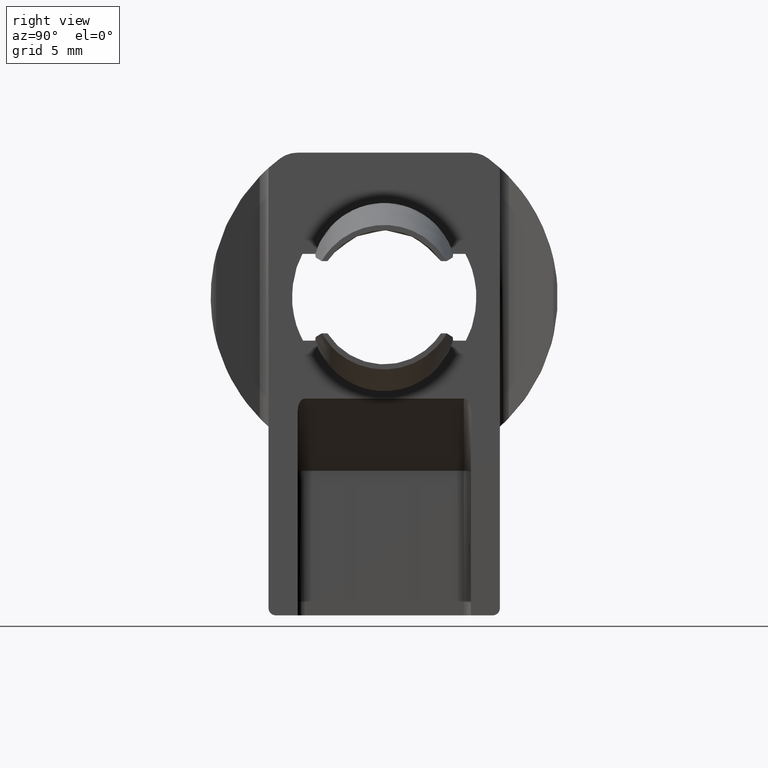
[diagram: clean part render]
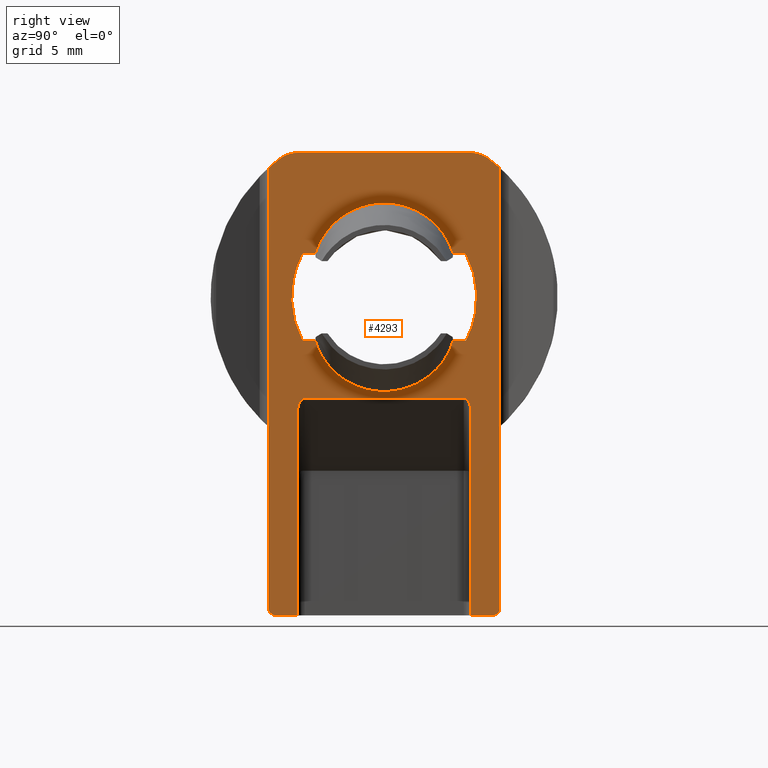
[diagram: same view with one face highlighted and labeled with its STEP entity id]
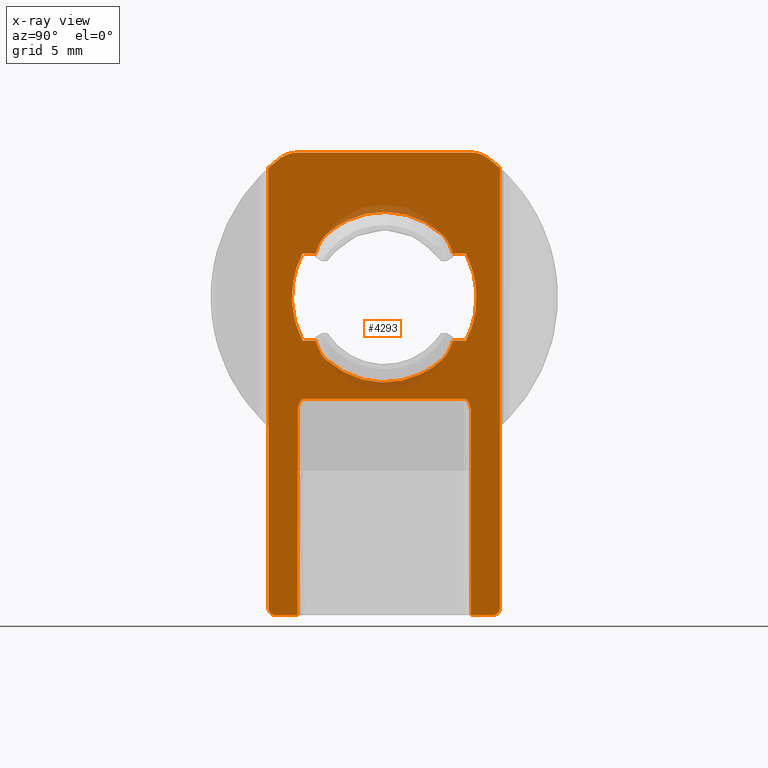
[diagram: x-ray of the same camera — body ghosted, the highlighted face saturated]
A machine part, right view. The second image highlights one B-rep face of the part: STEP entity #4293.
The next image is the same camera in x-ray: the body ghosted, the highlighted face saturated — about 3% of this face is hidden behind the body in this view.
In plain terms, the highlighted face is a freeform B-spline surface patch.
Its self-contained STEP definition (entity closure, byte-faithful):
#51=CARTESIAN_POINT('',(1.771347E-015,-4.765762840236580,2.999886770160321));
#52=VERTEX_POINT('',#51);
#127=CARTESIAN_POINT('',(1.776357E-015,4.765907703788380,2.999886729911405));
#128=VERTEX_POINT('',#127);
#157=CARTESIAN_POINT('',(3.570478E-015,4.765707419094451,-3.0));
#158=VERTEX_POINT('',#157);
#235=CARTESIAN_POINT('',(3.570478E-015,-4.765864318807211,-3.0));
#236=VERTEX_POINT('',#235);
#787=CARTESIAN_POINT('',(0.0,4.554444091420580,-3.552891456755315));
#788=VERTEX_POINT('',#787);
#789=CARTESIAN_POINT('',(0.0,3.946400949787030,-4.385976283226240));
#790=VERTEX_POINT('',#789);
#791=CARTESIAN_POINT('',(0.0,4.554444091420580,-3.552891456755315));
#792=CARTESIAN_POINT('',(0.0,4.461273811851106,-3.760171077286860));
#793=CARTESIAN_POINT('',(0.0,4.275767371482558,-4.056359904376016));
#794=CARTESIAN_POINT('',(0.0,4.034891609190876,-4.306364521956565));
#795=CARTESIAN_POINT('',(0.0,3.946400949787030,-4.385976283226240));
#796=B_SPLINE_CURVE_WITH_KNOTS('',3,(#791,#792,#793,#794,#795),.UNSPECIFIED.,.F.,.U.,(4,1,4),(2.619708E-009,0.681737386273166,1.038838425857268),.UNSPECIFIED.);
#797=EDGE_CURVE('',#788,#790,#796,.T.);
#886=CARTESIAN_POINT('',(0.0,-4.554429407662600,-3.552884900253810));
#887=VERTEX_POINT('',#886);
#899=CARTESIAN_POINT('',(0.0,-3.946400946001885,-4.385976286632101));
#900=VERTEX_POINT('',#899);
#901=CARTESIAN_POINT('',(0.0,-3.946400946001885,-4.385976286632101));
#902=CARTESIAN_POINT('',(0.0,-4.115399680191261,-4.234041148545464));
#903=CARTESIAN_POINT('',(0.0,-4.340936881240484,-3.967071429554411));
#904=CARTESIAN_POINT('',(0.0,-4.505587443320503,-3.661433842998301));
#905=CARTESIAN_POINT('',(0.0,-4.554429407662600,-3.552884900253810));
#906=B_SPLINE_CURVE_WITH_KNOTS('',3,(#901,#902,#903,#904,#905),.UNSPECIFIED.,.F.,.U.,(4,1,4),(2.619799E-009,0.681735403856302,1.038835405054978),.UNSPECIFIED.);
#907=EDGE_CURVE('',#900,#887,#906,.T.);
#961=CARTESIAN_POINT('',(0.0,-4.554571764069630,3.552556819531760));
#962=VERTEX_POINT('',#961);
#963=CARTESIAN_POINT('',(0.0,-3.946610646485590,4.385589589611290));
#964=VERTEX_POINT('',#963);
#965=CARTESIAN_POINT('',(0.0,-4.554571764069630,3.552556819531760));
#966=CARTESIAN_POINT('',(0.0,-4.461407685413516,3.759816034617729));
#967=CARTESIAN_POINT('',(0.0,-4.275937424559004,4.055990492288725));
#968=CARTESIAN_POINT('',(0.0,-4.035088327117609,4.305979523659312));
#969=CARTESIAN_POINT('',(0.0,-3.946610646485590,4.385589589611290));
#970=B_SPLINE_CURVE_WITH_KNOTS('',3,(#965,#966,#967,#968,#969),.UNSPECIFIED.,.F.,.U.,(4,1,4),(2.618314E-009,0.681676773632152,1.038746063602472),.UNSPECIFIED.);
#971=EDGE_CURVE('',#962,#964,#970,.T.);
#1060=CARTESIAN_POINT('',(0.0,4.554575988307851,3.552506249586555));
#1061=VERTEX_POINT('',#1060);
#1073=CARTESIAN_POINT('',(0.0,3.946601099417960,4.385598180845145));
#1074=VERTEX_POINT('',#1073);
#1075=CARTESIAN_POINT('',(0.0,3.946601099417960,4.385598180845145));
#1076=CARTESIAN_POINT('',(-4.585817E-017,4.099476018294926,4.248117568423749));
#1077=CARTESIAN_POINT('',(-7.751160E-017,4.328086531816618,3.984556237849699));
#1078=CARTESIAN_POINT('',(-3.134408E-017,4.496867224976368,3.680794975426401));
#1079=CARTESIAN_POINT('',(0.0,4.554575988307851,3.552506249586555));
#1080=B_SPLINE_CURVE_WITH_KNOTS('',3,(#1075,#1076,#1077,#1078,#1079),.UNSPECIFIED.,.F.,.U.,(4,1,4),(2.619236E-009,0.616787098314869,1.038803578596162),.UNSPECIFIED.);
#1081=EDGE_CURVE('',#1074,#1061,#1080,.T.);
#1151=CARTESIAN_POINT('',(0.0,3.946601099417960,4.385598180845145));
#1152=CARTESIAN_POINT('',(0.0,3.662094574987945,4.641688024561487));
#1153=CARTESIAN_POINT('',(0.0,3.152227278995445,5.017585769989820));
#1154=CARTESIAN_POINT('',(0.0,2.259459798810721,5.476904231986256));
#1155=CARTESIAN_POINT('',(0.0,1.432271223604078,5.748921283709670));
#1156=CARTESIAN_POINT('',(0.0,0.519102352397256,5.896531687630175));
#1157=CARTESIAN_POINT('',(0.0,-0.429242097025487,5.915584102807816));
#1158=CARTESIAN_POINT('',(0.0,-1.356762604361407,5.768344217959410));
#1159=CARTESIAN_POINT('',(0.0,-2.246048085358698,5.475854158746239));
#1160=CARTESIAN_POINT('',(0.0,-3.087898562420711,5.063900170446575));
#1161=CARTESIAN_POINT('',(0.0,-3.653738087627802,4.649212280997648));
#1162=CARTESIAN_POINT('',(0.0,-3.946610646485590,4.385589589611290));
#1163=B_SPLINE_CURVE_WITH_KNOTS('',3,(#1151,#1152,#1153,#1154,#1155,#1156,#1157,#1158,#1159,#1160,#1161,#1162),.UNSPECIFIED.,.F.,.U.,(4,1,1,1,1,1,1,1,1,4),(0.000000019263419,1.148351398913100,1.891412371473011,3.005999977983007,3.749060999073510,4.660970183039764,5.843111905748957,6.552396375721897,7.464333996667111,8.646460365284636),.UNSPECIFIED.);
#1164=EDGE_CURVE('',#1074,#964,#1163,.T.);
#1224=CARTESIAN_POINT('',(0.0,-3.946400946001885,-4.385976286632101));
#1225=CARTESIAN_POINT('',(0.0,-3.753931444289482,-4.559172722137257));
#1226=CARTESIAN_POINT('',(0.0,-3.337268346179385,-4.887142705500928));
#1227=CARTESIAN_POINT('',(0.0,-2.617798927124944,-5.310990481039348));
#1228=CARTESIAN_POINT('',(0.0,-1.739248696542088,-5.668446929114158));
#1229=CARTESIAN_POINT('',(0.0,-0.866422634314543,-5.858733385572671));
#1230=CARTESIAN_POINT('',(0.0,-0.022675969064201,-5.914315643409656));
#1231=CARTESIAN_POINT('',(0.0,0.822232399713760,-5.868370122120387));
#1232=CARTESIAN_POINT('',(0.0,1.717152766618988,-5.673263383764204));
#1233=CARTESIAN_POINT('',(0.0,2.471607006219605,-5.371301297158722));
#1234=CARTESIAN_POINT('',(0.0,3.206347994639183,-4.977247051986415));
#1235=CARTESIAN_POINT('',(0.0,3.653536881192076,-4.649575751648974));
#1236=CARTESIAN_POINT('',(0.0,3.946400949787030,-4.385976283226240));
#1237=B_SPLINE_CURVE_WITH_KNOTS('',3,(#1224,#1225,#1226,#1227,#1228,#1229,#1230,#1231,#1232,#1233,#1234,#1235,#1236),.UNSPECIFIED.,.F.,.U.,(4,1,1,1,1,1,1,1,1,1,4),(0.000000019227787,0.776771393242878,1.587331287805991,2.499209947719410,3.613730280902711,4.255413902147533,5.032179341829317,6.146700041065886,6.991030138201261,7.463858036947883,8.645909010040038),.UNSPECIFIED.);
#1238=EDGE_CURVE('',#900,#790,#1237,.T.);
#1269=CARTESIAN_POINT('',(0.0,-7.500000000000000,-22.000000000004000));
#1270=VERTEX_POINT('',#1269);
#1276=CARTESIAN_POINT('',(0.0,-8.0,-21.500000000004050));
#1277=VERTEX_POINT('',#1276);
#1278=CARTESIAN_POINT('',(0.0,-8.0,-21.500000000004050));
#1279=CARTESIAN_POINT('',(0.0,-8.000121295548665,-21.577740312530871));
#1280=CARTESIAN_POINT('',(0.0,-7.967885494670205,-21.712612831126169));
#1281=CARTESIAN_POINT('',(0.0,-7.859037508909851,-21.859304786858281));
#1282=CARTESIAN_POINT('',(0.0,-7.741926075449428,-21.943929032353211));
#1283=CARTESIAN_POINT('',(0.0,-7.622715750115169,-21.989906351718179));
#1284=CARTESIAN_POINT('',(0.0,-7.540905836443519,-22.000008827587671));
#1285=CARTESIAN_POINT('',(0.0,-7.500000000000000,-22.000000000004000));
#1286=B_SPLINE_CURVE_WITH_KNOTS('',3,(#1278,#1279,#1280,#1281,#1282,#1283,#1284,#1285),.UNSPECIFIED.,.F.,.U.,(4,1,1,1,1,4),(0.000000083023760,0.233171528679785,0.404969096235835,0.539971677105335,0.662698288677644,0.785417872175689),.UNSPECIFIED.);
#1287=EDGE_CURVE('',#1277,#1270,#1286,.T.);
#1326=CARTESIAN_POINT('',(0.0,7.500002000000000,-22.000000000004000));
#1327=VERTEX_POINT('',#1326);
#1328=CARTESIAN_POINT('',(0.0,8.000002000000000,-21.500000000004050));
#1329=VERTEX_POINT('',#1328);
#1330=CARTESIAN_POINT('',(0.0,7.500002000000000,-22.000000000004000));
#1331=CARTESIAN_POINT('',(0.0,7.577748822970985,-22.000126106190610));
#1332=CARTESIAN_POINT('',(0.0,7.704431462186046,-21.969823121696859));
#1333=CARTESIAN_POINT('',(0.0,7.846410526358837,-21.869767866939050));
#1334=CARTESIAN_POINT('',(0.0,7.936699125395341,-21.756971518723120));
#1335=CARTESIAN_POINT('',(0.0,7.988909920088633,-21.630899027321711));
#1336=CARTESIAN_POINT('',(0.0,8.000008171338633,-21.540905363746411));
#1337=CARTESIAN_POINT('',(0.0,8.000002000000000,-21.500000000004050));
#1338=B_SPLINE_CURVE_WITH_KNOTS('',3,(#1330,#1331,#1332,#1333,#1334,#1335,#1336,#1337),.UNSPECIFIED.,.F.,.U.,(4,1,1,1,1,4),(0.000000083023342,0.233171528679377,0.380448858963149,0.515428561097489,0.662698288677571,0.785417872175722),.UNSPECIFIED.);
#1339=EDGE_CURVE('',#1327,#1329,#1338,.T.);
#1954=CARTESIAN_POINT('',(0.0,-8.0,8.944267885076400));
#1955=VERTEX_POINT('',#1954);
#1982=CARTESIAN_POINT('',(0.0,-8.0,-8.944267885076410));
#1983=VERTEX_POINT('',#1982);
#2001=CARTESIAN_POINT('',(0.0,-8.0,-8.944267885076410));
#2002=CARTESIAN_POINT('',(0.0,-8.0,8.944267885076400));
#2003=QUASI_UNIFORM_CURVE('',1,(#2001,#2002),.UNSPECIFIED.,.F.,.U.);
#2004=EDGE_CURVE('',#1983,#1955,#2003,.T.);
#2025=CARTESIAN_POINT('',(0.0,8.000002000000000,-8.944273251639821));
#2026=VERTEX_POINT('',#2025);
#2053=CARTESIAN_POINT('',(0.0,8.000002000000000,8.944271462785389));
#2054=VERTEX_POINT('',#2053);
#2072=CARTESIAN_POINT('',(0.0,8.000002000000000,-8.944273251639821));
#2073=CARTESIAN_POINT('',(0.0,8.000002000000000,8.944271462785389));
#2074=QUASI_UNIFORM_CURVE('',1,(#2072,#2073),.UNSPECIFIED.,.F.,.U.);
#2075=EDGE_CURVE('',#2026,#2054,#2074,.T.);
#2219=CARTESIAN_POINT('',(0.0,-5.653382597199660,2.999901000000000));
#2220=VERTEX_POINT('',#2219);
#2221=CARTESIAN_POINT('',(0.0,-5.653382597199660,2.999901000000000));
#2222=CARTESIAN_POINT('',(1.771347E-015,-4.765762840236580,2.999886770160321));
#2223=QUASI_UNIFORM_CURVE('',1,(#2221,#2222),.UNSPECIFIED.,.F.,.U.);
#2224=EDGE_CURVE('',#2220,#52,#2223,.T.);
#2264=CARTESIAN_POINT('',(0.0,-5.653330062902840,-3.0));
#2265=VERTEX_POINT('',#2264);
#2266=CARTESIAN_POINT('',(0.0,-5.653330062902840,-3.0));
#2267=CARTESIAN_POINT('',(0.0,-5.905008553604235,-2.526010643956913));
#2268=CARTESIAN_POINT('',(0.0,-6.241570795362862,-1.636898143684625));
#2269=CARTESIAN_POINT('',(0.0,-6.425236553160832,-0.342969659333146));
#2270=CARTESIAN_POINT('',(0.0,-6.384796722201736,0.717024296380022));
#2271=CARTESIAN_POINT('',(0.0,-6.168687076587691,1.837414413128512));
#2272=CARTESIAN_POINT('',(0.0,-5.882149930118694,2.568984969789306));
#2273=CARTESIAN_POINT('',(0.0,-5.653382597199660,2.999901000000000));
#2274=B_SPLINE_CURVE_WITH_KNOTS('',3,(#2266,#2267,#2268,#2269,#2270,#2271,#2272,#2273),.UNSPECIFIED.,.F.,.U.,(4,1,1,1,1,4),(9.285502E-009,1.609962944660341,2.829639630129203,3.902939130121698,4.781102137822639,6.244703991259780),.UNSPECIFIED.);
#2275=EDGE_CURVE('',#2265,#2220,#2274,.T.);
#2298=CARTESIAN_POINT('',(3.570478E-015,-4.765864318807211,-3.0));
#2299=CARTESIAN_POINT('',(0.0,-5.653330062902840,-3.0));
#2300=QUASI_UNIFORM_CURVE('',1,(#2298,#2299),.UNSPECIFIED.,.F.,.U.);
#2301=EDGE_CURVE('',#236,#2265,#2300,.T.);
#2337=CARTESIAN_POINT('',(0.0,5.653382597199660,-3.0));
#2338=VERTEX_POINT('',#2337);
#2347=CARTESIAN_POINT('',(0.0,5.653382597199660,-3.0));
#2348=CARTESIAN_POINT('',(3.570478E-015,4.765707419094451,-3.0));
#2349=QUASI_UNIFORM_CURVE('',1,(#2347,#2348),.UNSPECIFIED.,.F.,.U.);
#2350=EDGE_CURVE('',#2338,#158,#2349,.T.);
#2384=CARTESIAN_POINT('',(0.0,5.653330062902840,2.999901000000000));
#2385=VERTEX_POINT('',#2384);
#2386=CARTESIAN_POINT('',(0.0,5.653330062902840,2.999901000000000));
#2387=CARTESIAN_POINT('',(0.0,5.882101736904392,2.568988448715436));
#2388=CARTESIAN_POINT('',(0.0,6.168665634109757,1.837425225386571));
#2389=CARTESIAN_POINT('',(0.0,6.369329765528229,0.797061582539647));
#2390=CARTESIAN_POINT('',(0.0,6.419627191460136,-0.081501867199877));
#2391=CARTESIAN_POINT('',(0.0,6.341454601130298,-1.056673640597658));
#2392=CARTESIAN_POINT('',(0.0,6.092967092739210,-2.055024629197585));
#2393=CARTESIAN_POINT('',(0.0,5.805847240420393,-2.712705512970919));
#2394=CARTESIAN_POINT('',(0.0,5.653382597199660,-3.0));
#2395=B_SPLINE_CURVE_WITH_KNOTS('',3,(#2386,#2387,#2388,#2389,#2390,#2391,#2392,#2393,#2394),.UNSPECIFIED.,.F.,.U.,(4,1,1,1,1,1,4),(9.285169E-009,1.463601862722467,2.341764870423476,3.171131607987140,4.098086433002242,5.268969558530108,6.244703991259780),.UNSPECIFIED.);
#2396=EDGE_CURVE('',#2385,#2338,#2395,.T.);
#2420=CARTESIAN_POINT('',(1.776357E-015,4.765907703788380,2.999886729911405));
#2421=CARTESIAN_POINT('',(0.0,5.653330062902840,2.999901000000000));
#2422=QUASI_UNIFORM_CURVE('',1,(#2420,#2421),.UNSPECIFIED.,.F.,.U.);
#2423=EDGE_CURVE('',#128,#2385,#2422,.T.);
#2442=CARTESIAN_POINT('',(0.0,7.200000600000060,9.600000799999959));
#2443=VERTEX_POINT('',#2442);
#2450=CARTESIAN_POINT('',(0.0,6.000000628318531,9.999999999999799));
#2451=VERTEX_POINT('',#2450);
#2457=CARTESIAN_POINT('',(0.0,7.200000600000060,9.600000799999959));
#2458=CARTESIAN_POINT('',(0.0,7.065962513244688,9.700590238115815));
#2459=CARTESIAN_POINT('',(0.0,6.836979937659954,9.830939097896611));
#2460=CARTESIAN_POINT('',(0.0,6.428978952349824,9.966938858375769));
#2461=CARTESIAN_POINT('',(0.0,6.167585084362520,10.000045420194221));
#2462=CARTESIAN_POINT('',(0.0,6.000000628318531,9.999999999999799));
#2463=B_SPLINE_CURVE_WITH_KNOTS('',3,(#2457,#2458,#2459,#2460,#2461,#2462),.UNSPECIFIED.,.F.,.U.,(4,1,1,4),(6.652870E-009,0.502738042165576,0.784269284954876,1.287007320467628),.UNSPECIFIED.);
#2464=EDGE_CURVE('',#2443,#2451,#2463,.T.);
#2559=CARTESIAN_POINT('',(0.0,8.000002000000000,8.944271462785389));
#2560=CARTESIAN_POINT('',(0.0,7.742925508870388,9.174211255855521));
#2561=CARTESIAN_POINT('',(0.0,7.475927178232303,9.393058339351637));
#2562=CARTESIAN_POINT('',(0.0,7.200000600000060,9.600000799999959));
#2563=B_SPLINE_CURVE_WITH_KNOTS('',3,(#2559,#2560,#2561,#2562),.UNSPECIFIED.,.F.,.U.,(4,4),(5.499334E-011,1.034721696416706),.UNSPECIFIED.);
#2564=EDGE_CURVE('',#2054,#2443,#2563,.T.);
#2584=CARTESIAN_POINT('',(0.0,-5.999999999999920,10.0));
#2585=VERTEX_POINT('',#2584);
#2592=CARTESIAN_POINT('',(0.0,-7.199999999999910,9.600000000000000));
#2593=VERTEX_POINT('',#2592);
#2599=CARTESIAN_POINT('',(0.0,-5.999999999999920,10.0));
#2600=CARTESIAN_POINT('',(0.0,-6.140768334270071,10.000023722856699));
#2601=CARTESIAN_POINT('',(0.0,-6.415586464570350,9.970864137891674));
#2602=CARTESIAN_POINT('',(0.0,-6.825989739174402,9.838646264172287));
#2603=CARTESIAN_POINT('',(0.0,-7.076677119465856,9.692527620987187));
#2604=CARTESIAN_POINT('',(0.0,-7.199999999999910,9.600000000000000));
#2605=B_SPLINE_CURVE_WITH_KNOTS('',3,(#2599,#2600,#2601,#2602,#2603,#2604),.UNSPECIFIED.,.F.,.U.,(4,1,1,4),(6.652425E-009,0.422300554546045,0.824488589945222,1.287007638720255),.UNSPECIFIED.);
#2606=EDGE_CURVE('',#2585,#2593,#2605,.T.);
#2649=CARTESIAN_POINT('',(0.0,-7.199999999999910,9.600000000000000));
#2650=CARTESIAN_POINT('',(0.0,-7.475926513354450,9.393057143071570));
#2651=CARTESIAN_POINT('',(0.0,-7.742923561899183,9.174208137412959));
#2652=CARTESIAN_POINT('',(0.0,-8.0,8.944267885076400));
#2653=B_SPLINE_CURVE_WITH_KNOTS('',3,(#2649,#2650,#2651,#2652),.UNSPECIFIED.,.F.,.U.,(4,4),(5.509626E-011,1.034722375198861),.UNSPECIFIED.);
#2654=EDGE_CURVE('',#2593,#1955,#2653,.T.);
#2944=CARTESIAN_POINT('',(0.0,-6.0,-7.971822173163281));
#2945=VERTEX_POINT('',#2944);
#2952=CARTESIAN_POINT('',(0.0,-5.500000000000000,-6.999996333332169));
#2953=VERTEX_POINT('',#2952);
#2959=CARTESIAN_POINT('',(0.0,-6.0,-7.971822173163281));
#2960=CARTESIAN_POINT('',(0.0,-6.0,-7.569278587966654));
#2961=CARTESIAN_POINT('',(0.0,-5.853553302358129,-7.284637360187959));
#2962=CARTESIAN_POINT('',(0.0,-5.707106604716256,-6.999996132409263));
#2963=CARTESIAN_POINT('',(0.0,-5.500000000000000,-6.999996333332169));
#2971=(BOUNDED_CURVE()B_SPLINE_CURVE(2,(#2959,#2960,#2961,#2962,#2963),.UNSPECIFIED.,.F.,.U.)B_SPLINE_CURVE_WITH_KNOTS((3,2,3),(0.0,0.500000000000000,1.0),.UNSPECIFIED.)CURVE()GEOMETRIC_REPRESENTATION_ITEM()RATIONAL_B_SPLINE_CURVE((1.0,0.923879484758767,1.0,0.923879484758767,1.0))REPRESENTATION_ITEM(''));
#2972=EDGE_CURVE('',#2945,#2953,#2971,.T.);
#2999=CARTESIAN_POINT('',(0.0,6.000002000000000,-7.971822173163501));
#3000=VERTEX_POINT('',#2999);
#3006=CARTESIAN_POINT('',(0.0,5.500002000000000,-6.999996333332169));
#3007=VERTEX_POINT('',#3006);
#3008=CARTESIAN_POINT('',(0.0,5.500002000000000,-6.999996333332169));
#3009=CARTESIAN_POINT('',(0.0,6.000002021073425,-6.999996385545360));
#3010=CARTESIAN_POINT('',(0.0,6.000002000000000,-7.971822173163501));
#3018=(BOUNDED_CURVE()B_SPLINE_CURVE(2,(#3008,#3009,#3010),.UNSPECIFIED.,.F.,.U.)CURVE()GEOMETRIC_REPRESENTATION_ITEM()QUASI_UNIFORM_CURVE()RATIONAL_B_SPLINE_CURVE((1.0,0.707106785280714,1.0))REPRESENTATION_ITEM(''));
#3019=EDGE_CURVE('',#3007,#3000,#3018,.T.);
#3062=CARTESIAN_POINT('',(0.0,5.500002000000000,-6.999996333332169));
#3063=CARTESIAN_POINT('',(0.0,-5.500000000000000,-6.999996333332169));
#3064=QUASI_UNIFORM_CURVE('',1,(#3062,#3063),.UNSPECIFIED.,.F.,.U.);
#3065=EDGE_CURVE('',#3007,#2953,#3064,.T.);
#3345=CARTESIAN_POINT('',(0.0,6.000002000000000,-22.000000000004000));
#3346=VERTEX_POINT('',#3345);
#3347=CARTESIAN_POINT('',(0.0,6.000002000000000,-22.000000000004000));
#3348=CARTESIAN_POINT('',(0.0,7.500002000000000,-22.000000000004000));
#3349=QUASI_UNIFORM_CURVE('',1,(#3347,#3348),.UNSPECIFIED.,.F.,.U.);
#3350=EDGE_CURVE('',#3346,#1327,#3349,.T.);
#3364=CARTESIAN_POINT('',(0.0,-6.0,-22.000000000004000));
#3365=VERTEX_POINT('',#3364);
#3371=CARTESIAN_POINT('',(0.0,-7.500000000000000,-22.000000000004000));
#3372=CARTESIAN_POINT('',(0.0,-6.0,-22.000000000004000));
#3373=QUASI_UNIFORM_CURVE('',1,(#3371,#3372),.UNSPECIFIED.,.F.,.U.);
#3374=EDGE_CURVE('',#1270,#3365,#3373,.T.);
#3587=CARTESIAN_POINT('',(0.0,6.000002000000000,-22.000000000004000));
#3588=CARTESIAN_POINT('',(0.0,6.000002000000000,-7.971822173163501));
#3589=QUASI_UNIFORM_CURVE('',1,(#3587,#3588),.UNSPECIFIED.,.F.,.U.);
#3590=EDGE_CURVE('',#3346,#3000,#3589,.T.);
#3615=CARTESIAN_POINT('',(0.0,-6.0,-22.000000000004000));
#3616=CARTESIAN_POINT('',(0.0,-6.0,-7.971822173163281));
#3617=QUASI_UNIFORM_CURVE('',1,(#3615,#3616),.UNSPECIFIED.,.F.,.U.);
#3618=EDGE_CURVE('',#3365,#2945,#3617,.T.);
#4055=CARTESIAN_POINT('',(0.0,8.000002000000000,-21.500000000004050));
#4056=CARTESIAN_POINT('',(0.0,8.000002000000000,-8.944273251639821));
#4057=QUASI_UNIFORM_CURVE('',1,(#4055,#4056),.UNSPECIFIED.,.F.,.U.);
#4058=EDGE_CURVE('',#1329,#2026,#4057,.T.);
#4172=CARTESIAN_POINT('',(0.0,-5.999999999999920,10.0));
#4173=CARTESIAN_POINT('',(0.0,6.000000628318531,9.999999999999799));
#4174=QUASI_UNIFORM_CURVE('',1,(#4172,#4173),.UNSPECIFIED.,.F.,.U.);
#4175=EDGE_CURVE('',#2585,#2451,#4174,.T.);
#4213=CARTESIAN_POINT('',(0.0,-8.0,-21.500000000004050));
#4214=CARTESIAN_POINT('',(0.0,-8.0,-8.944267885076410));
#4215=QUASI_UNIFORM_CURVE('',1,(#4213,#4214),.UNSPECIFIED.,.F.,.U.);
#4216=EDGE_CURVE('',#1277,#1983,#4215,.T.);
#4226=CARTESIAN_POINT('',(0.0,-8.799200068888892,11.598399937977989));
#4227=CARTESIAN_POINT('',(0.0,-8.799200068888892,-23.598400796288882));
#4228=CARTESIAN_POINT('',(0.0,8.799202498042389,11.598399937977989));
#4229=CARTESIAN_POINT('',(0.0,8.799202498042389,-23.598400796288882));
#4230=B_SPLINE_SURFACE_WITH_KNOTS('',1,1,((#4226,#4228),(#4227,#4229)),.UNSPECIFIED.,.F.,.F.,.U.,(2,2),(2,2),(0.0,35.196800734266873),(0.0,17.598402566931281),.UNSPECIFIED.);
#4231=ORIENTED_EDGE('',*,*,#2075,.T.);
#4232=ORIENTED_EDGE('',*,*,#2564,.T.);
#4233=ORIENTED_EDGE('',*,*,#2464,.T.);
#4234=ORIENTED_EDGE('',*,*,#4175,.F.);
#4235=ORIENTED_EDGE('',*,*,#2606,.T.);
#4236=ORIENTED_EDGE('',*,*,#2654,.T.);
#4237=ORIENTED_EDGE('',*,*,#2004,.F.);
#4238=ORIENTED_EDGE('',*,*,#4216,.F.);
#4239=ORIENTED_EDGE('',*,*,#1287,.T.);
#4240=ORIENTED_EDGE('',*,*,#3374,.T.);
#4241=ORIENTED_EDGE('',*,*,#3618,.T.);
#4242=ORIENTED_EDGE('',*,*,#2972,.T.);
#4243=ORIENTED_EDGE('',*,*,#3065,.F.);
#4244=ORIENTED_EDGE('',*,*,#3019,.T.);
#4245=ORIENTED_EDGE('',*,*,#3590,.F.);
#4246=ORIENTED_EDGE('',*,*,#3350,.T.);
#4247=ORIENTED_EDGE('',*,*,#1339,.T.);
#4248=ORIENTED_EDGE('',*,*,#4058,.T.);
#4249=EDGE_LOOP('',(#4231,#4232,#4233,#4234,#4235,#4236,#4237,#4238,#4239,#4240,#4241,#4242,#4243,#4244,#4245,#4246,#4247,#4248));
#4250=FACE_OUTER_BOUND('',#4249,.T.);
#4251=CARTESIAN_POINT('',(1.776357E-015,4.765907703788380,2.999886729911405));
#4252=CARTESIAN_POINT('',(1.184886E-015,4.706212071262927,3.187967318347390));
#4253=CARTESIAN_POINT('',(5.914423E-016,4.635611332930907,3.372586429759185));
#4254=CARTESIAN_POINT('',(0.0,4.554575988307851,3.552506249586555));
#4255=B_SPLINE_CURVE_WITH_KNOTS('',3,(#4251,#4252,#4253,#4254),.UNSPECIFIED.,.F.,.U.,(4,4),(1.023581E-010,0.591981830972845),.UNSPECIFIED.);
#4256=EDGE_CURVE('',#128,#1061,#4255,.T.);
#4257=ORIENTED_EDGE('',*,*,#4256,.F.);
#4258=ORIENTED_EDGE('',*,*,#2423,.T.);
#4259=ORIENTED_EDGE('',*,*,#2396,.T.);
#4260=ORIENTED_EDGE('',*,*,#2350,.T.);
#4261=CARTESIAN_POINT('',(0.0,4.554444091420580,-3.552891456755315));
#4262=CARTESIAN_POINT('',(1.188819E-015,4.635465657051844,-3.372881192101086));
#4263=CARTESIAN_POINT('',(2.381643E-015,4.706045496323204,-3.188171910077788));
#4264=CARTESIAN_POINT('',(3.570478E-015,4.765707419094451,-3.0));
#4265=B_SPLINE_CURVE_WITH_KNOTS('',3,(#4261,#4262,#4263,#4264),.UNSPECIFIED.,.F.,.U.,(4,4),(1.025390E-010,0.592211845137297),.UNSPECIFIED.);
#4266=EDGE_CURVE('',#788,#158,#4265,.T.);
#4267=ORIENTED_EDGE('',*,*,#4266,.F.);
#4268=ORIENTED_EDGE('',*,*,#797,.T.);
#4269=ORIENTED_EDGE('',*,*,#1238,.F.);
#4270=ORIENTED_EDGE('',*,*,#907,.T.);
#4271=CARTESIAN_POINT('',(3.570478E-015,-4.765864318807211,-3.0));
#4272=CARTESIAN_POINT('',(2.381623E-015,-4.706144675069377,-3.188172917951039));
#4273=CARTESIAN_POINT('',(1.188800E-015,-4.635507552047093,-3.372879952172217));
#4274=CARTESIAN_POINT('',(0.0,-4.554429407662600,-3.552884900253810));
#4275=B_SPLINE_CURVE_WITH_KNOTS('',3,(#4271,#4272,#4273,#4274),.UNSPECIFIED.,.F.,.U.,(4,4),(1.025516E-010,0.592266990970925),.UNSPECIFIED.);
#4276=EDGE_CURVE('',#236,#887,#4275,.T.);
#4277=ORIENTED_EDGE('',*,*,#4276,.F.);
#4278=ORIENTED_EDGE('',*,*,#2301,.T.);
#4279=ORIENTED_EDGE('',*,*,#2275,.T.);
#4280=ORIENTED_EDGE('',*,*,#2224,.T.);
#4281=CARTESIAN_POINT('',(0.0,-4.554571764069630,3.552556819531760));
#4282=CARTESIAN_POINT('',(5.897835E-016,-4.635562029683968,3.372617749921377));
#4283=CARTESIAN_POINT('',(1.181554E-015,-4.706117496391451,3.187982270408757));
#4284=CARTESIAN_POINT('',(1.771347E-015,-4.765762840236580,2.999886770160321));
#4285=B_SPLINE_CURVE_WITH_KNOTS('',3,(#4281,#4282,#4283,#4284),.UNSPECIFIED.,.F.,.U.,(4,4),(1.023818E-010,0.591978909249123),.UNSPECIFIED.);
#4286=EDGE_CURVE('',#962,#52,#4285,.T.);
#4287=ORIENTED_EDGE('',*,*,#4286,.F.);
#4288=ORIENTED_EDGE('',*,*,#971,.T.);
#4289=ORIENTED_EDGE('',*,*,#1164,.F.);
#4290=ORIENTED_EDGE('',*,*,#1081,.T.);
#4291=EDGE_LOOP('',(#4257,#4258,#4259,#4260,#4267,#4268,#4269,#4270,#4277,#4278,#4279,#4280,#4287,#4288,#4289,#4290));
#4292=FACE_BOUND('',#4291,.T.);
#4293=ADVANCED_FACE('',(#4250,#4292),#4230,.T.);